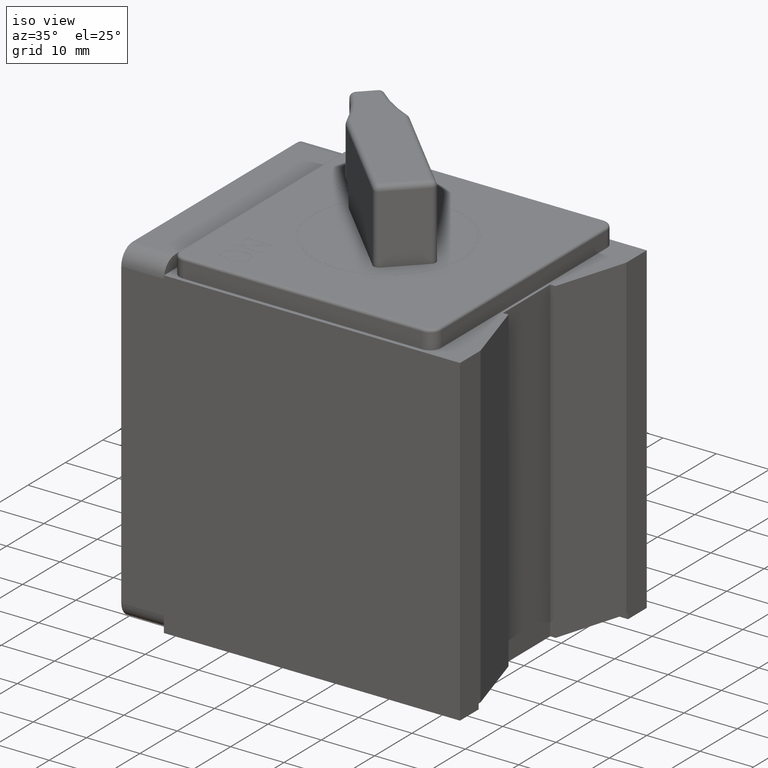
[diagram: clean part render]
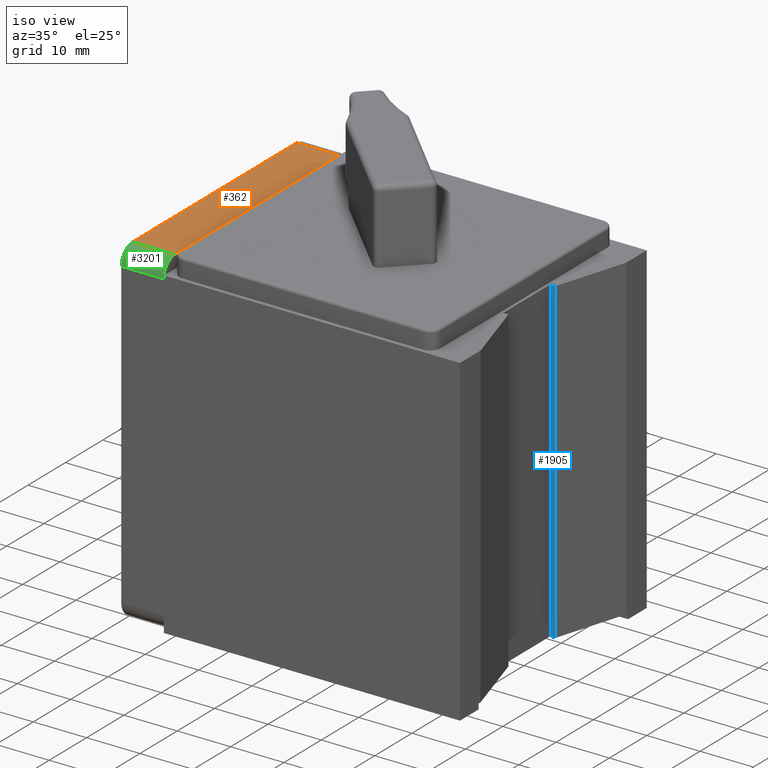
[diagram: same view with three faces highlighted in distinct colors, each labeled with its STEP entity id]
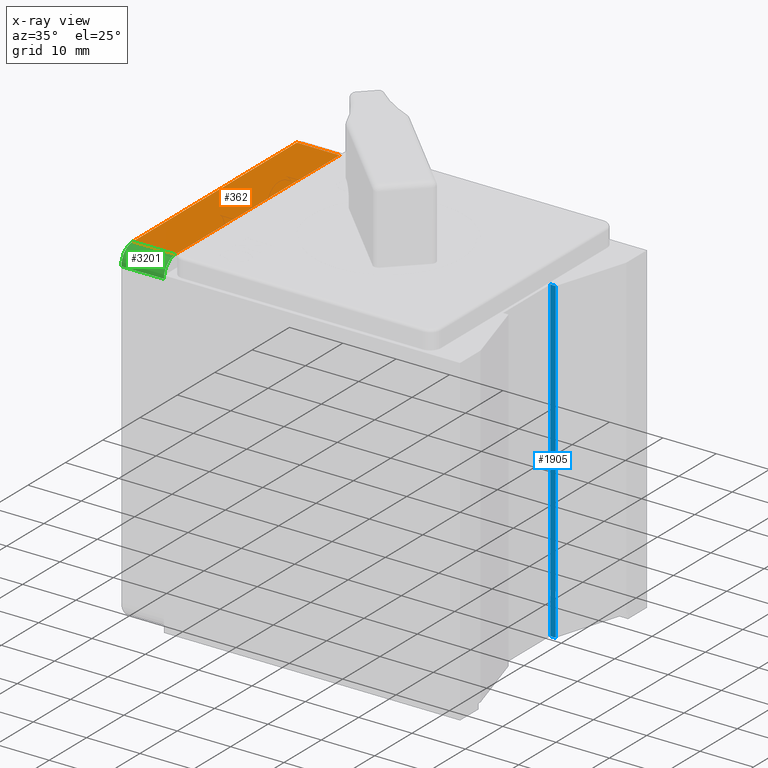
[diagram: x-ray of the same camera — body ghosted, the three highlighted faces saturated]
A machine part, iso view with three faces highlighted in distinct colors.
The next image is the same camera in x-ray (body ghosted, the three faces saturated) — at least one of them is partly hidden behind the body in this view.
Their STEP definitions:

[orange] entity #362 — the highlighted planar face has unit normal (0, 0, -1).
#263 = CARTESIAN_POINT ( 'NONE',  ( -8.000000000000000000, -22.00000000000000000, 31.50000000000000700 ) ) ;
#362 = ADVANCED_FACE ( 'NONE', ( #4433 ), #3338, .F. ) ;
#646 = ORIENTED_EDGE ( 'NONE', *, *, #5647, .T. ) ;
#985 = LINE ( 'NONE', #263, #4066 ) ;
#1398 = DIRECTION ( 'NONE',  ( -1.000000000000000000, 0.0000000000000000000, 0.0000000000000000000 ) ) ;
#1447 = CARTESIAN_POINT ( 'NONE',  ( -8.000000000000000000, 25.00000000000000000, 31.50000000000000700 ) ) ;
#1729 = CARTESIAN_POINT ( 'NONE',  ( 0.0000000000000000000, 25.00000000000000000, 31.50000000000000700 ) ) ;
#1794 = ORIENTED_EDGE ( 'NONE', *, *, #3408, .T. ) ;
#2093 = CARTESIAN_POINT ( 'NONE',  ( 0.0000000000000000000, 22.00000000000000400, 31.50000000000000700 ) ) ;
#2273 = CARTESIAN_POINT ( 'NONE',  ( -8.000000000000000000, 22.00000000000000400, 31.50000000000000700 ) ) ;
#3227 = CARTESIAN_POINT ( 'NONE',  ( 0.0000000000000000000, -22.00000000000000000, 31.50000000000000700 ) ) ;
#3338 = PLANE ( 'NONE',  #5129 ) ;
#3408 = EDGE_CURVE ( 'NONE', #7368, #10989, #985, .T. ) ;
#3829 = CARTESIAN_POINT ( 'NONE',  ( -8.000000000000000000, -22.00000000000000000, 31.50000000000000700 ) ) ;
#3895 = ORIENTED_EDGE ( 'NONE', *, *, #5314, .F. ) ;
#4066 = VECTOR ( 'NONE', #12042, 1000.000000000000000 ) ;
#4433 = FACE_OUTER_BOUND ( 'NONE', #7872, .T. ) ;
#5129 = AXIS2_PLACEMENT_3D ( 'NONE', #1447, #8342, #1398 ) ;
#5314 = EDGE_CURVE ( 'NONE', #7368, #7144, #12408, .T. ) ;
#5647 = EDGE_CURVE ( 'NONE', #10989, #5763, #9670, .T. ) ;
#5763 = VERTEX_POINT ( 'NONE', #2093 ) ;
#6651 = CARTESIAN_POINT ( 'NONE',  ( -8.000000000000000000, 25.00000000000000000, 31.50000000000000700 ) ) ;
#7144 = VERTEX_POINT ( 'NONE', #2273 ) ;
#7368 = VERTEX_POINT ( 'NONE', #3829 ) ;
#7872 = EDGE_LOOP ( 'NONE', ( #3895, #1794, #646, #12489 ) ) ;
#8160 = VECTOR ( 'NONE', #9623, 1000.000000000000000 ) ;
#8342 = DIRECTION ( 'NONE',  ( 0.0000000000000000000, 0.0000000000000000000, -1.000000000000000000 ) ) ;
#8657 = DIRECTION ( 'NONE',  ( 0.0000000000000000000, 1.000000000000000000, 0.0000000000000000000 ) ) ;
#8760 = VECTOR ( 'NONE', #8657, 1000.000000000000000 ) ;
#8862 = CARTESIAN_POINT ( 'NONE',  ( -8.000000000000000000, 22.00000000000000400, 31.50000000000000700 ) ) ;
#9623 = DIRECTION ( 'NONE',  ( 0.0000000000000000000, 1.000000000000000000, 0.0000000000000000000 ) ) ;
#9670 = LINE ( 'NONE', #1729, #8760 ) ;
#9788 = EDGE_CURVE ( 'NONE', #5763, #7144, #10813, .T. ) ;
#10813 = LINE ( 'NONE', #8862, #11572 ) ;
#10820 = DIRECTION ( 'NONE',  ( -1.000000000000000000, -0.0000000000000000000, -0.0000000000000000000 ) ) ;
#10989 = VERTEX_POINT ( 'NONE', #3227 ) ;
#11572 = VECTOR ( 'NONE', #10820, 1000.000000000000000 ) ;
#12042 = DIRECTION ( 'NONE',  ( 1.000000000000000000, 0.0000000000000000000, 0.0000000000000000000 ) ) ;
#12408 = LINE ( 'NONE', #6651, #8160 ) ;
#12489 = ORIENTED_EDGE ( 'NONE', *, *, #9788, .T. ) ;

[blue] entity #1905 — the highlighted planar face has unit normal (0, -1, 0).
#43 = LINE ( 'NONE', #1290, #7095 ) ;
#136 = VECTOR ( 'NONE', #2459, 1000.000000000000000 ) ;
#243 = CARTESIAN_POINT ( 'NONE',  ( 51.50000000000000700, 6.300000000000016700, -30.50000000000000700 ) ) ;
#449 = CARTESIAN_POINT ( 'NONE',  ( 50.50000000000000000, 6.300000000000016700, -30.50000000000000700 ) ) ;
#1148 = CARTESIAN_POINT ( 'NONE',  ( 50.50000000000000000, 6.300000000000016700, -30.50000000000000700 ) ) ;
#1238 = EDGE_CURVE ( 'NONE', #6256, #9517, #7788, .T. ) ;
#1290 = CARTESIAN_POINT ( 'NONE',  ( 51.50000000000000700, 6.300000000000016700, -31.50000000000000000 ) ) ;
#1423 = EDGE_CURVE ( 'NONE', #6075, #6256, #6254, .T. ) ;
#1905 = ADVANCED_FACE ( 'NONE', ( #10050 ), #4864, .T. ) ;
#2366 = AXIS2_PLACEMENT_3D ( 'NONE', #9695, #4905, #6758 ) ;
#2459 = DIRECTION ( 'NONE',  ( 1.000000000000000000, 0.0000000000000000000, 0.0000000000000000000 ) ) ;
#3124 = DIRECTION ( 'NONE',  ( -1.000000000000000000, 0.0000000000000000000, 0.0000000000000000000 ) ) ;
#3258 = VERTEX_POINT ( 'NONE', #9469 ) ;
#4331 = DIRECTION ( 'NONE',  ( 0.0000000000000000000, 0.0000000000000000000, 1.000000000000000000 ) ) ;
#4864 = PLANE ( 'NONE',  #2366 ) ;
#4905 = DIRECTION ( 'NONE',  ( 0.0000000000000000000, -1.000000000000000000, 0.0000000000000000000 ) ) ;
#5108 = EDGE_CURVE ( 'NONE', #6075, #3258, #43, .T. ) ;
#5189 = VECTOR ( 'NONE', #6089, 1000.000000000000000 ) ;
#5487 = EDGE_LOOP ( 'NONE', ( #6307, #11188, #9816, #11631 ) ) ;
#6075 = VERTEX_POINT ( 'NONE', #243 ) ;
#6089 = DIRECTION ( 'NONE',  ( 0.0000000000000000000, 0.0000000000000000000, 1.000000000000000000 ) ) ;
#6109 = VECTOR ( 'NONE', #3124, 1000.000000000000000 ) ;
#6254 = LINE ( 'NONE', #1148, #6109 ) ;
#6256 = VERTEX_POINT ( 'NONE', #449 ) ;
#6307 = ORIENTED_EDGE ( 'NONE', *, *, #1423, .F. ) ;
#6758 = DIRECTION ( 'NONE',  ( 0.0000000000000000000, 0.0000000000000000000, 1.000000000000000000 ) ) ;
#7095 = VECTOR ( 'NONE', #4331, 1000.000000000000000 ) ;
#7335 = CARTESIAN_POINT ( 'NONE',  ( 50.50000000000000000, 6.300000000000016700, 29.10000000000000100 ) ) ;
#7688 = EDGE_CURVE ( 'NONE', #9517, #3258, #8256, .T. ) ;
#7788 = LINE ( 'NONE', #11100, #5189 ) ;
#8256 = LINE ( 'NONE', #12227, #136 ) ;
#9469 = CARTESIAN_POINT ( 'NONE',  ( 51.50000000000000700, 6.300000000000016700, 29.10000000000000100 ) ) ;
#9517 = VERTEX_POINT ( 'NONE', #7335 ) ;
#9695 = CARTESIAN_POINT ( 'NONE',  ( 50.50000000000000000, 6.300000000000016700, -31.50000000000000000 ) ) ;
#9816 = ORIENTED_EDGE ( 'NONE', *, *, #7688, .F. ) ;
#10050 = FACE_OUTER_BOUND ( 'NONE', #5487, .T. ) ;
#11100 = CARTESIAN_POINT ( 'NONE',  ( 50.50000000000000000, 6.300000000000016700, -31.50000000000000000 ) ) ;
#11188 = ORIENTED_EDGE ( 'NONE', *, *, #5108, .T. ) ;
#11631 = ORIENTED_EDGE ( 'NONE', *, *, #1238, .F. ) ;
#12227 = CARTESIAN_POINT ( 'NONE',  ( 50.50000000000000000, 6.300000000000016700, 29.10000000000000100 ) ) ;

[green] entity #3201 — the highlighted cylindrical surface (edge-blend (fillet) strip) has radius 3 mm, axis along (1, 0, 0).
#263 = CARTESIAN_POINT ( 'NONE',  ( -8.000000000000000000, -22.00000000000000000, 31.50000000000000700 ) ) ;
#303 = ORIENTED_EDGE ( 'NONE', *, *, #6700, .F. ) ;
#306 = DIRECTION ( 'NONE',  ( -1.000000000000000000, -0.0000000000000000000, -0.0000000000000000000 ) ) ;
#363 = CARTESIAN_POINT ( 'NONE',  ( 0.0000000000000000000, -25.00000000000000000, 28.50000000000000400 ) ) ;
#708 = VERTEX_POINT ( 'NONE', #363 ) ;
#875 = CARTESIAN_POINT ( 'NONE',  ( -8.000000000000000000, -25.00000000000000000, 28.50000000000000400 ) ) ;
#985 = LINE ( 'NONE', #263, #4066 ) ;
#1619 = CYLINDRICAL_SURFACE ( 'NONE', #2280, 2.999999999999999100 ) ;
#1701 = CIRCLE ( 'NONE', #5343, 2.999999999999999100 ) ;
#1977 = EDGE_LOOP ( 'NONE', ( #5370, #5703, #303, #8355 ) ) ;
#2280 = AXIS2_PLACEMENT_3D ( 'NONE', #8612, #10457, #5590 ) ;
#2976 = LINE ( 'NONE', #12047, #6639 ) ;
#3201 = ADVANCED_FACE ( 'NONE', ( #11087 ), #1619, .T. ) ;
#3227 = CARTESIAN_POINT ( 'NONE',  ( 0.0000000000000000000, -22.00000000000000000, 31.50000000000000700 ) ) ;
#3247 = EDGE_CURVE ( 'NONE', #3606, #7368, #4219, .T. ) ;
#3408 = EDGE_CURVE ( 'NONE', #7368, #10989, #985, .T. ) ;
#3606 = VERTEX_POINT ( 'NONE', #875 ) ;
#3829 = CARTESIAN_POINT ( 'NONE',  ( -8.000000000000000000, -22.00000000000000000, 31.50000000000000700 ) ) ;
#4066 = VECTOR ( 'NONE', #12042, 1000.000000000000000 ) ;
#4219 = CIRCLE ( 'NONE', #6447, 2.999999999999999100 ) ;
#4730 = CARTESIAN_POINT ( 'NONE',  ( 0.0000000000000000000, -22.00000000000000000, 28.50000000000000700 ) ) ;
#5147 = EDGE_CURVE ( 'NONE', #708, #3606, #2976, .T. ) ;
#5343 = AXIS2_PLACEMENT_3D ( 'NONE', #4730, #9646, #5716 ) ;
#5370 = ORIENTED_EDGE ( 'NONE', *, *, #3247, .F. ) ;
#5590 = DIRECTION ( 'NONE',  ( 0.0000000000000000000, 0.0000000000000000000, -1.000000000000000000 ) ) ;
#5703 = ORIENTED_EDGE ( 'NONE', *, *, #5147, .F. ) ;
#5716 = DIRECTION ( 'NONE',  ( 0.0000000000000000000, 0.0000000000000000000, 1.000000000000000000 ) ) ;
#6447 = AXIS2_PLACEMENT_3D ( 'NONE', #6703, #10617, #7709 ) ;
#6639 = VECTOR ( 'NONE', #306, 1000.000000000000000 ) ;
#6700 = EDGE_CURVE ( 'NONE', #10989, #708, #1701, .T. ) ;
#6703 = CARTESIAN_POINT ( 'NONE',  ( -8.000000000000000000, -22.00000000000000000, 28.50000000000000700 ) ) ;
#7368 = VERTEX_POINT ( 'NONE', #3829 ) ;
#7709 = DIRECTION ( 'NONE',  ( 0.0000000000000000000, 0.0000000000000000000, 1.000000000000000000 ) ) ;
#8355 = ORIENTED_EDGE ( 'NONE', *, *, #3408, .F. ) ;
#8612 = CARTESIAN_POINT ( 'NONE',  ( -8.000000000000000000, -22.00000000000000000, 28.50000000000000700 ) ) ;
#9646 = DIRECTION ( 'NONE',  ( 1.000000000000000000, -0.0000000000000000000, -0.0000000000000000000 ) ) ;
#10457 = DIRECTION ( 'NONE',  ( 1.000000000000000000, 0.0000000000000000000, 0.0000000000000000000 ) ) ;
#10617 = DIRECTION ( 'NONE',  ( -1.000000000000000000, 0.0000000000000000000, 0.0000000000000000000 ) ) ;
#10989 = VERTEX_POINT ( 'NONE', #3227 ) ;
#11087 = FACE_OUTER_BOUND ( 'NONE', #1977, .T. ) ;
#12042 = DIRECTION ( 'NONE',  ( 1.000000000000000000, 0.0000000000000000000, 0.0000000000000000000 ) ) ;
#12047 = CARTESIAN_POINT ( 'NONE',  ( -8.000000000000000000, -25.00000000000000000, 28.50000000000000400 ) ) ;